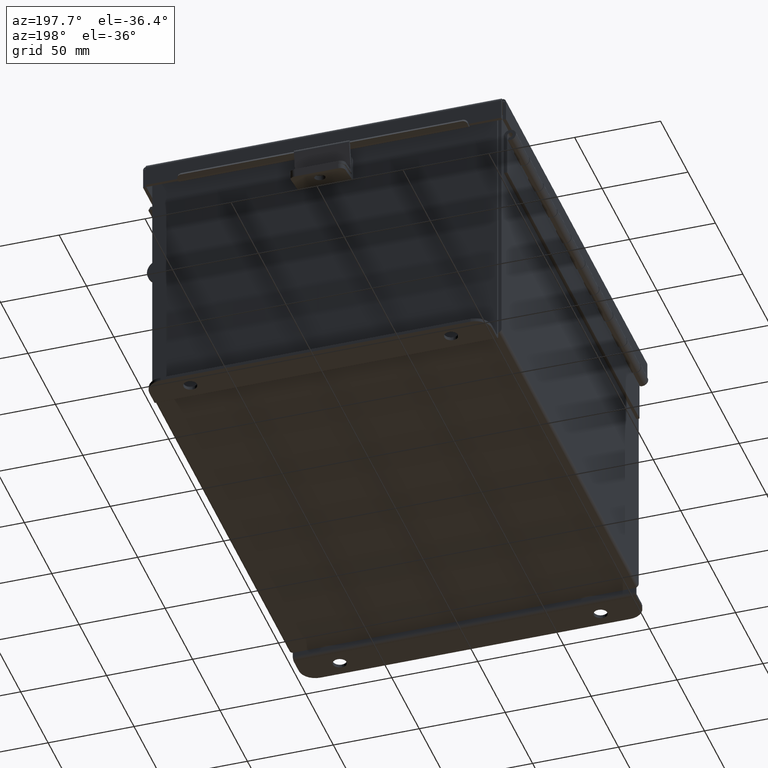
[diagram: clean part render]
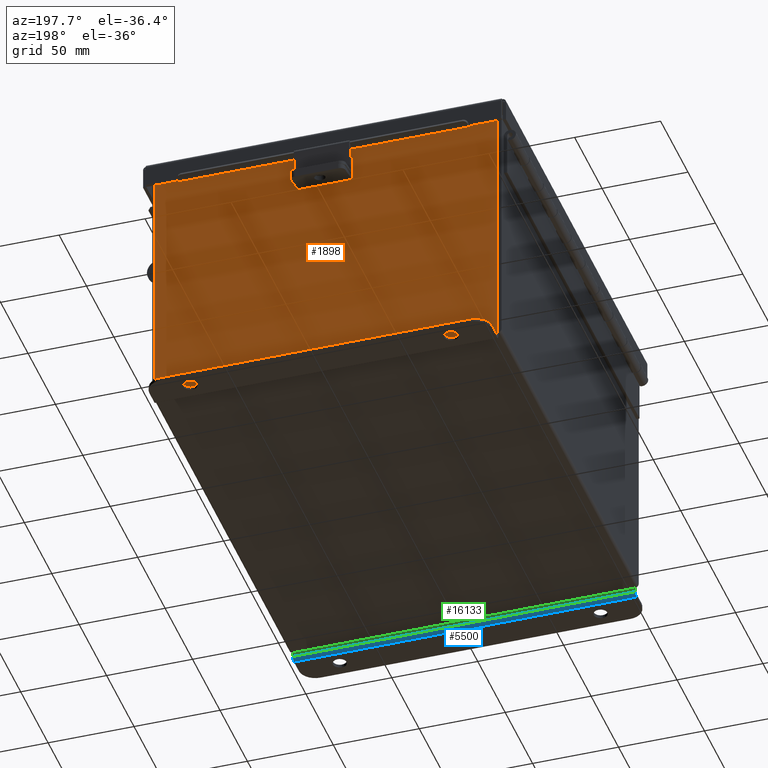
[diagram: same view with three faces highlighted in distinct colors, each labeled with its STEP entity id]
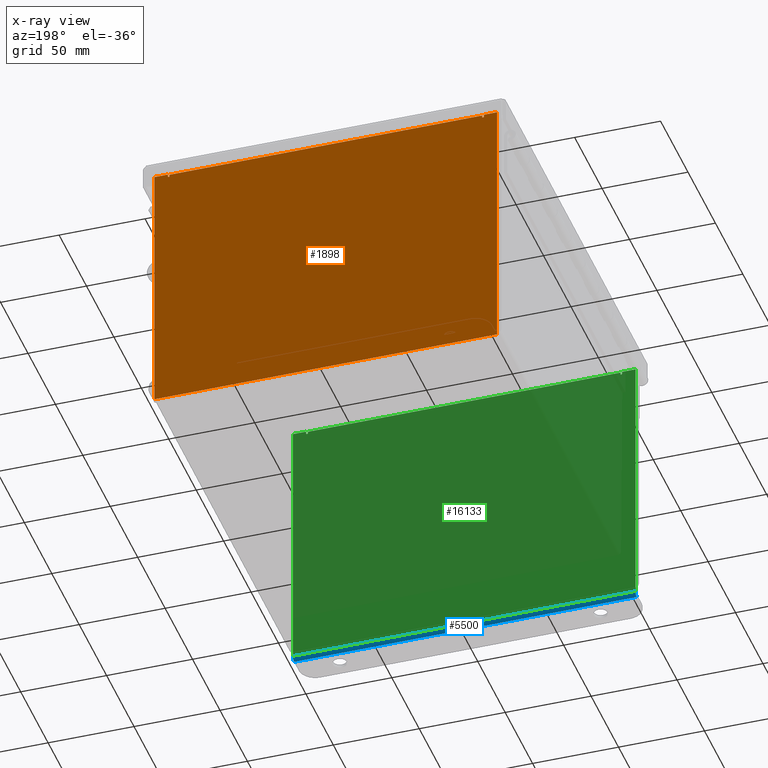
[diagram: x-ray of the same camera — body ghosted, the three highlighted faces saturated]
A machine part, auxiliary view with three faces highlighted in distinct colors.
The next image is the same camera in x-ray (body ghosted, the three faces saturated) — at least one of them is partly hidden behind the body in this view.
Their STEP definitions:

[orange] entity #1898 — the highlighted planar face has unit normal (0, -1, 0).
#67 = CARTESIAN_POINT ( 'NONE',  ( 3.925299999999999600, 0.0000000000000000000, 2.925299999999999600 ) ) ;
#261 = CARTESIAN_POINT ( 'NONE',  ( -3.925299999999999600, 0.0000000000000000000, 2.925299999999999600 ) ) ;
#300 = VERTEX_POINT ( 'NONE', #5429 ) ;
#304 = CARTESIAN_POINT ( 'NONE',  ( -3.619649999999999600, 0.0000000000000000000, 2.925299999999999600 ) ) ;
#619 = CARTESIAN_POINT ( 'NONE',  ( -3.582299999999999600, 0.0000000000000000000, 2.874949999999999200 ) ) ;
#674 = EDGE_CURVE ( 'NONE', #11678, #1456, #11774, .T. ) ;
#714 = VECTOR ( 'NONE', #12511, 39.37007874015748100 ) ;
#860 = CARTESIAN_POINT ( 'NONE',  ( 3.619649999999937400, 0.0000000000000000000, -7.867722221753078700E-014 ) ) ;
#991 = VECTOR ( 'NONE', #6445, 39.37007874015748100 ) ;
#1086 = VERTEX_POINT ( 'NONE', #14085 ) ;
#1111 = LINE ( 'NONE', #4866, #714 ) ;
#1204 = VERTEX_POINT ( 'NONE', #3157 ) ;
#1456 = VERTEX_POINT ( 'NONE', #619 ) ;
#1898 = ADVANCED_FACE ( 'NONE', ( #9356 ), #14934, .F. ) ;
#2104 = VECTOR ( 'NONE', #15505, 39.37007874015748100 ) ;
#2131 = VECTOR ( 'NONE', #8506, 39.37007874015748100 ) ;
#2575 = VERTEX_POINT ( 'NONE', #7294 ) ;
#2608 = CARTESIAN_POINT ( 'NONE',  ( 3.925299999999999600, 0.0000000000000000000, -3.099299999999999900 ) ) ;
#2727 = EDGE_LOOP ( 'NONE', ( #16073, #11976, #10118, #14120, #14423, #8174, #14835, #14193, #10639, #7487, #11870, #11010 ) ) ;
#2853 = LINE ( 'NONE', #13628, #5840 ) ;
#3157 = CARTESIAN_POINT ( 'NONE',  ( -3.925299999999999600, 0.0000000000000000000, 2.925299999999999600 ) ) ;
#3168 = DIRECTION ( 'NONE',  ( 0.0000000000000000000, 0.0000000000000000000, -1.000000000000000000 ) ) ;
#3243 = VECTOR ( 'NONE', #7227, 39.37007874015748100 ) ;
#3281 = VECTOR ( 'NONE', #9215, 39.37007874015748100 ) ;
#3341 = VECTOR ( 'NONE', #12239, 39.37007874015748100 ) ;
#3414 = VERTEX_POINT ( 'NONE', #304 ) ;
#3873 = CARTESIAN_POINT ( 'NONE',  ( 3.925299999999999600, 0.0000000000000000000, 2.925299999999999600 ) ) ;
#4077 = EDGE_CURVE ( 'NONE', #7641, #13609, #11169, .T. ) ;
#4212 = DIRECTION ( 'NONE',  ( -0.0000000000000000000, 1.000000000000000000, -0.0000000000000000000 ) ) ;
#4213 = CARTESIAN_POINT ( 'NONE',  ( 3.619649999999999600, 0.0000000000000000000, 2.874949999999999200 ) ) ;
#4723 = DIRECTION ( 'NONE',  ( 1.000000000000000000, 0.0000000000000000000, 0.0000000000000000000 ) ) ;
#4822 = CARTESIAN_POINT ( 'NONE',  ( -3.619649999999999600, 0.0000000000000000000, 2.874949999999999200 ) ) ;
#4866 = CARTESIAN_POINT ( 'NONE',  ( -3.925299999999999600, 0.0000000000000000000, 2.925299999999999600 ) ) ;
#5030 = CARTESIAN_POINT ( 'NONE',  ( 3.600974999999999600, 0.0000000000000000000, 2.874949999999999200 ) ) ;
#5162 = EDGE_CURVE ( 'NONE', #1204, #3414, #14134, .T. ) ;
#5429 = CARTESIAN_POINT ( 'NONE',  ( 3.582299999999999600, 0.0000000000000000000, 2.912299999999999200 ) ) ;
#5514 = LINE ( 'NONE', #11645, #2104 ) ;
#5539 = LINE ( 'NONE', #860, #2131 ) ;
#5795 = VECTOR ( 'NONE', #3168, 39.37007874015748100 ) ;
#5796 = CARTESIAN_POINT ( 'NONE',  ( 3.582299999999999600, 0.0000000000000000000, 2.874949999999999200 ) ) ;
#5840 = VECTOR ( 'NONE', #4723, 39.37007874015748100 ) ;
#5963 = CARTESIAN_POINT ( 'NONE',  ( -3.619649999999999600, 0.0000000000000000000, 0.0000000000000000000 ) ) ;
#6133 = AXIS2_PLACEMENT_3D ( 'NONE', #11823, #4212, #13126 ) ;
#6313 = DIRECTION ( 'NONE',  ( 0.0000000000000000000, 0.0000000000000000000, -1.000000000000000000 ) ) ;
#6445 = DIRECTION ( 'NONE',  ( 0.0000000000000000000, 0.0000000000000000000, -1.000000000000000000 ) ) ;
#6644 = AXIS2_PLACEMENT_3D ( 'NONE', #16205, #11079, #8584 ) ;
#6673 = LINE ( 'NONE', #7923, #3281 ) ;
#7227 = DIRECTION ( 'NONE',  ( 0.0000000000000000000, 0.0000000000000000000, 1.000000000000000000 ) ) ;
#7285 = VERTEX_POINT ( 'NONE', #5796 ) ;
#7294 = CARTESIAN_POINT ( 'NONE',  ( 3.619650000000000900, 0.0000000000000000000, 2.925299999999999600 ) ) ;
#7487 = ORIENTED_EDGE ( 'NONE', *, *, #10913, .F. ) ;
#7641 = VERTEX_POINT ( 'NONE', #67 ) ;
#7903 = EDGE_CURVE ( 'NONE', #7285, #300, #14317, .T. ) ;
#7923 = CARTESIAN_POINT ( 'NONE',  ( -3.925299999999999600, 0.0000000000000000000, 2.925299999999999600 ) ) ;
#7947 = DIRECTION ( 'NONE',  ( 1.000000000000000000, 0.0000000000000000000, 0.0000000000000000000 ) ) ;
#8003 = EDGE_CURVE ( 'NONE', #2575, #8421, #5539, .T. ) ;
#8174 = ORIENTED_EDGE ( 'NONE', *, *, #15820, .F. ) ;
#8421 = VERTEX_POINT ( 'NONE', #4213 ) ;
#8506 = DIRECTION ( 'NONE',  ( -2.170286390199978800E-014, 0.0000000000000000000, -1.000000000000000000 ) ) ;
#8514 = CIRCLE ( 'NONE', #6133, 0.01867500000000003900 ) ;
#8584 = DIRECTION ( 'NONE',  ( 0.0000000000000000000, -0.0000000000000000000, -1.000000000000000000 ) ) ;
#9215 = DIRECTION ( 'NONE',  ( 1.000000000000000000, 0.0000000000000000000, 0.0000000000000000000 ) ) ;
#9356 = FACE_OUTER_BOUND ( 'NONE', #2727, .T. ) ;
#10118 = ORIENTED_EDGE ( 'NONE', *, *, #674, .F. ) ;
#10210 = CARTESIAN_POINT ( 'NONE',  ( -3.582299999999999600, 1.092739197465705300E-015, 2.912299999999999200 ) ) ;
#10639 = ORIENTED_EDGE ( 'NONE', *, *, #4077, .T. ) ;
#10913 = EDGE_CURVE ( 'NONE', #1086, #13609, #5514, .T. ) ;
#10966 = CARTESIAN_POINT ( 'NONE',  ( 3.582299999999999600, 0.0000000000000000000, 0.0000000000000000000 ) ) ;
#11010 = ORIENTED_EDGE ( 'NONE', *, *, #5162, .T. ) ;
#11079 = DIRECTION ( 'NONE',  ( 0.0000000000000000000, -1.000000000000000000, 0.0000000000000000000 ) ) ;
#11169 = LINE ( 'NONE', #3873, #991 ) ;
#11475 = VERTEX_POINT ( 'NONE', #4822 ) ;
#11645 = CARTESIAN_POINT ( 'NONE',  ( -3.925299999999999600, 0.0000000000000000000, -3.099299999999999900 ) ) ;
#11678 = VERTEX_POINT ( 'NONE', #10210 ) ;
#11774 = LINE ( 'NONE', #12077, #5795 ) ;
#11823 = CARTESIAN_POINT ( 'NONE',  ( -3.600974999999999600, 0.0000000000000000000, 2.874949999999999200 ) ) ;
#11833 = EDGE_CURVE ( 'NONE', #2575, #7641, #6673, .T. ) ;
#11870 = ORIENTED_EDGE ( 'NONE', *, *, #15749, .T. ) ;
#11976 = ORIENTED_EDGE ( 'NONE', *, *, #15379, .F. ) ;
#12077 = CARTESIAN_POINT ( 'NONE',  ( -3.582299999999999600, 0.0000000000000000000, 0.0000000000000000000 ) ) ;
#12239 = DIRECTION ( 'NONE',  ( 0.0000000000000000000, 0.0000000000000000000, 1.000000000000000000 ) ) ;
#12511 = DIRECTION ( 'NONE',  ( -0.0000000000000000000, -0.0000000000000000000, 1.000000000000000000 ) ) ;
#12847 = EDGE_CURVE ( 'NONE', #11678, #300, #2853, .T. ) ;
#13126 = DIRECTION ( 'NONE',  ( 0.0000000000000000000, 0.0000000000000000000, -1.000000000000000000 ) ) ;
#13366 = EDGE_CURVE ( 'NONE', #11475, #3414, #16403, .T. ) ;
#13483 = CIRCLE ( 'NONE', #15214, 0.01867500000000003900 ) ;
#13609 = VERTEX_POINT ( 'NONE', #2608 ) ;
#13628 = CARTESIAN_POINT ( 'NONE',  ( -3.582299999999999600, 1.092739197465705300E-015, 2.912299999999999200 ) ) ;
#13952 = DIRECTION ( 'NONE',  ( -0.0000000000000000000, 1.000000000000000000, -0.0000000000000000000 ) ) ;
#14085 = CARTESIAN_POINT ( 'NONE',  ( -3.925299999999999600, 0.0000000000000000000, -3.099299999999999900 ) ) ;
#14120 = ORIENTED_EDGE ( 'NONE', *, *, #12847, .T. ) ;
#14134 = LINE ( 'NONE', #261, #14933 ) ;
#14193 = ORIENTED_EDGE ( 'NONE', *, *, #11833, .T. ) ;
#14317 = LINE ( 'NONE', #10966, #3341 ) ;
#14423 = ORIENTED_EDGE ( 'NONE', *, *, #7903, .F. ) ;
#14835 = ORIENTED_EDGE ( 'NONE', *, *, #8003, .F. ) ;
#14933 = VECTOR ( 'NONE', #7947, 39.37007874015748100 ) ;
#14934 = PLANE ( 'NONE',  #6644 ) ;
#15214 = AXIS2_PLACEMENT_3D ( 'NONE', #5030, #13952, #6313 ) ;
#15379 = EDGE_CURVE ( 'NONE', #1456, #11475, #8514, .T. ) ;
#15505 = DIRECTION ( 'NONE',  ( 1.000000000000000000, -0.0000000000000000000, -0.0000000000000000000 ) ) ;
#15749 = EDGE_CURVE ( 'NONE', #1086, #1204, #1111, .T. ) ;
#15820 = EDGE_CURVE ( 'NONE', #8421, #7285, #13483, .T. ) ;
#16073 = ORIENTED_EDGE ( 'NONE', *, *, #13366, .F. ) ;
#16205 = CARTESIAN_POINT ( 'NONE',  ( 0.0000000000000000000, 0.0000000000000000000, 0.0000000000000000000 ) ) ;
#16403 = LINE ( 'NONE', #5963, #3243 ) ;

[blue] entity #5500 — the highlighted cylindrical surface (edge-blend (fillet) strip) has radius 2.2276 mm, axis along (1, 0, -0).
#1153 = VERTEX_POINT ( 'NONE', #15753 ) ;
#1262 = CIRCLE ( 'NONE', #12197, 0.08770000000000026400 ) ;
#2014 = CARTESIAN_POINT ( 'NONE',  ( 3.925299999999998700, 0.01300000000000120000, -3.187000000000000300 ) ) ;
#2370 = CIRCLE ( 'NONE', #5417, 0.08770000000000026400 ) ;
#2553 = CYLINDRICAL_SURFACE ( 'NONE', #7334, 0.08770000000000026400 ) ;
#2852 = DIRECTION ( 'NONE',  ( 1.000000000000000000, 4.910036603141682400E-031, -0.0000000000000000000 ) ) ;
#3291 = ORIENTED_EDGE ( 'NONE', *, *, #10453, .F. ) ;
#3322 = CARTESIAN_POINT ( 'NONE',  ( -3.925300000000000900, 0.01300000000000010700, -3.187000000000000300 ) ) ;
#3618 = EDGE_CURVE ( 'NONE', #12779, #12087, #14181, .T. ) ;
#4823 = EDGE_CURVE ( 'NONE', #12108, #12087, #2370, .T. ) ;
#5075 = DIRECTION ( 'NONE',  ( 0.0000000000000000000, -3.699053013085864000E-015, -1.000000000000000000 ) ) ;
#5178 = DIRECTION ( 'NONE',  ( -1.000000000000000000, -4.910036603141682400E-031, 0.0000000000000000000 ) ) ;
#5417 = AXIS2_PLACEMENT_3D ( 'NONE', #10490, #2852, #11773 ) ;
#5500 = ADVANCED_FACE ( 'NONE', ( #9335 ), #2553, .T. ) ;
#5906 = CARTESIAN_POINT ( 'NONE',  ( 3.925299999999998700, -0.07470000000000015500, -3.099299999999999900 ) ) ;
#7334 = AXIS2_PLACEMENT_3D ( 'NONE', #12726, #11423, #5075 ) ;
#7807 = ORIENTED_EDGE ( 'NONE', *, *, #4823, .F. ) ;
#9068 = EDGE_LOOP ( 'NONE', ( #3291, #13545, #12168, #7807 ) ) ;
#9335 = FACE_OUTER_BOUND ( 'NONE', #9068, .T. ) ;
#9499 = CARTESIAN_POINT ( 'NONE',  ( -3.925300000000000900, -0.07470000000000015500, -3.099299999999999900 ) ) ;
#10159 = EDGE_CURVE ( 'NONE', #12779, #1153, #1262, .T. ) ;
#10453 = EDGE_CURVE ( 'NONE', #1153, #12108, #11236, .T. ) ;
#10490 = CARTESIAN_POINT ( 'NONE',  ( 3.925299999999998700, 0.01300000000000010700, -3.099299999999999900 ) ) ;
#10786 = DIRECTION ( 'NONE',  ( 1.000000000000000000, 4.910036603141682400E-031, -0.0000000000000000000 ) ) ;
#10949 = DIRECTION ( 'NONE',  ( 1.000000000000000000, 4.910036603141682400E-031, -0.0000000000000000000 ) ) ;
#11236 = LINE ( 'NONE', #9499, #13833 ) ;
#11423 = DIRECTION ( 'NONE',  ( -1.000000000000000000, -4.910036603141682400E-031, 0.0000000000000000000 ) ) ;
#11580 = VECTOR ( 'NONE', #10949, 39.37007874015748100 ) ;
#11773 = DIRECTION ( 'NONE',  ( 0.0000000000000000000, 0.0000000000000000000, 1.000000000000000000 ) ) ;
#12087 = VERTEX_POINT ( 'NONE', #14773 ) ;
#12108 = VERTEX_POINT ( 'NONE', #5906 ) ;
#12168 = ORIENTED_EDGE ( 'NONE', *, *, #3618, .T. ) ;
#12197 = AXIS2_PLACEMENT_3D ( 'NONE', #12813, #5178, #14081 ) ;
#12726 = CARTESIAN_POINT ( 'NONE',  ( -3.925300000000000900, 0.01299999999999901400, -3.099299999999999900 ) ) ;
#12779 = VERTEX_POINT ( 'NONE', #3322 ) ;
#12813 = CARTESIAN_POINT ( 'NONE',  ( -3.925300000000000900, 0.01299999999999901400, -3.099299999999999900 ) ) ;
#13545 = ORIENTED_EDGE ( 'NONE', *, *, #10159, .F. ) ;
#13833 = VECTOR ( 'NONE', #10786, 39.37007874015748100 ) ;
#14081 = DIRECTION ( 'NONE',  ( 0.0000000000000000000, 0.0000000000000000000, 1.000000000000000000 ) ) ;
#14181 = LINE ( 'NONE', #2014, #11580 ) ;
#14773 = CARTESIAN_POINT ( 'NONE',  ( 3.925299999999998700, 0.01300000000000010700, -3.187000000000000300 ) ) ;
#15753 = CARTESIAN_POINT ( 'NONE',  ( -3.925300000000000900, -0.07470000000000015500, -3.099299999999999900 ) ) ;

[green] entity #16133 — the highlighted planar face has unit normal (-0, 1, -0).
#124 = FACE_OUTER_BOUND ( 'NONE', #9107, .T. ) ;
#209 = LINE ( 'NONE', #4050, #16348 ) ;
#482 = CARTESIAN_POINT ( 'NONE',  ( 3.925299999999998700, -0.07469999999999142600, 2.925300000000001800 ) ) ;
#681 = ORIENTED_EDGE ( 'NONE', *, *, #16330, .F. ) ;
#720 = CARTESIAN_POINT ( 'NONE',  ( -3.619650000000000900, -0.07470000000000015500, 2.874949999999999200 ) ) ;
#1143 = CARTESIAN_POINT ( 'NONE',  ( 3.619649999999998700, -0.07469999999999033000, 2.874949999999999200 ) ) ;
#1153 = VERTEX_POINT ( 'NONE', #15753 ) ;
#1337 = CARTESIAN_POINT ( 'NONE',  ( 3.619649999999999600, -0.07469999999999142600, 2.925300000000000500 ) ) ;
#1922 = LINE ( 'NONE', #5864, #12528 ) ;
#2009 = DIRECTION ( 'NONE',  ( 1.000000000000000000, 4.910036603141682400E-031, -0.0000000000000000000 ) ) ;
#2176 = CARTESIAN_POINT ( 'NONE',  ( 3.582299999999998700, -0.07469999999999033000, 2.912299999999999200 ) ) ;
#2265 = AXIS2_PLACEMENT_3D ( 'NONE', #3628, #12558, #4907 ) ;
#2340 = CIRCLE ( 'NONE', #4460, 0.01867500000000003900 ) ;
#2470 = LINE ( 'NONE', #1143, #16034 ) ;
#2656 = EDGE_CURVE ( 'NONE', #15846, #2856, #5343, .T. ) ;
#2856 = VERTEX_POINT ( 'NONE', #9024 ) ;
#2868 = EDGE_CURVE ( 'NONE', #8132, #12085, #5931, .T. ) ;
#3299 = DIRECTION ( 'NONE',  ( -4.910036603141682400E-031, -1.000000000000000000, 0.0000000000000000000 ) ) ;
#3467 = CARTESIAN_POINT ( 'NONE',  ( -3.582300000000000900, -0.07470000000000015500, 2.874949999999999200 ) ) ;
#3492 = PLANE ( 'NONE',  #6027 ) ;
#3610 = LINE ( 'NONE', #8430, #9999 ) ;
#3628 = CARTESIAN_POINT ( 'NONE',  ( 3.600974999999998700, -0.07469999999999033000, 2.874949999999999200 ) ) ;
#3661 = EDGE_CURVE ( 'NONE', #8660, #12172, #3610, .T. ) ;
#4050 = CARTESIAN_POINT ( 'NONE',  ( -3.925300000000000900, -0.07470000000000015500, 2.925299999999999600 ) ) ;
#4116 = ORIENTED_EDGE ( 'NONE', *, *, #5828, .F. ) ;
#4192 = EDGE_CURVE ( 'NONE', #12170, #8132, #209, .T. ) ;
#4460 = AXIS2_PLACEMENT_3D ( 'NONE', #10946, #3299, #12222 ) ;
#4750 = CARTESIAN_POINT ( 'NONE',  ( -3.582300000000000900, -0.07470000000000015500, 2.912299999999998300 ) ) ;
#4786 = DIRECTION ( 'NONE',  ( 0.0000000000000000000, 0.0000000000000000000, -1.000000000000000000 ) ) ;
#4907 = DIRECTION ( 'NONE',  ( 0.0000000000000000000, 0.0000000000000000000, -1.000000000000000000 ) ) ;
#5104 = DIRECTION ( 'NONE',  ( 1.000000000000000000, 4.910036603141682400E-031, 0.0000000000000000000 ) ) ;
#5332 = VECTOR ( 'NONE', #15412, 39.37007874015748100 ) ;
#5343 = CIRCLE ( 'NONE', #2265, 0.01867500000000003900 ) ;
#5569 = VERTEX_POINT ( 'NONE', #1337 ) ;
#5723 = LINE ( 'NONE', #14136, #5332 ) ;
#5809 = EDGE_CURVE ( 'NONE', #12085, #8660, #2340, .T. ) ;
#5828 = EDGE_CURVE ( 'NONE', #12172, #15155, #1922, .T. ) ;
#5864 = CARTESIAN_POINT ( 'NONE',  ( -3.582300000000000900, -0.07469999999999907300, 2.912299999999998300 ) ) ;
#5906 = CARTESIAN_POINT ( 'NONE',  ( 3.925299999999998700, -0.07470000000000015500, -3.099299999999999900 ) ) ;
#5931 = LINE ( 'NONE', #14663, #9718 ) ;
#6027 = AXIS2_PLACEMENT_3D ( 'NONE', #11135, #12423, #4786 ) ;
#6752 = LINE ( 'NONE', #14822, #11071 ) ;
#6974 = VERTEX_POINT ( 'NONE', #482 ) ;
#7301 = VECTOR ( 'NONE', #11114, 39.37007874015748100 ) ;
#7370 = EDGE_CURVE ( 'NONE', #6974, #12108, #6752, .T. ) ;
#7583 = ORIENTED_EDGE ( 'NONE', *, *, #2868, .F. ) ;
#8132 = VERTEX_POINT ( 'NONE', #8790 ) ;
#8244 = EDGE_CURVE ( 'NONE', #1153, #12170, #5723, .T. ) ;
#8319 = DIRECTION ( 'NONE',  ( 0.0000000000000000000, 1.186875369640613200E-014, -1.000000000000000000 ) ) ;
#8430 = CARTESIAN_POINT ( 'NONE',  ( -3.582300000000000900, -0.07469999999999907300, 2.874949999999999200 ) ) ;
#8652 = EDGE_CURVE ( 'NONE', #15155, #15846, #14092, .T. ) ;
#8660 = VERTEX_POINT ( 'NONE', #3467 ) ;
#8790 = CARTESIAN_POINT ( 'NONE',  ( -3.619650000000000900, -0.07470000000000015500, 2.925299999999998200 ) ) ;
#9024 = CARTESIAN_POINT ( 'NONE',  ( 3.619649999999998700, -0.07469999999999142600, 2.874949999999999200 ) ) ;
#9107 = EDGE_LOOP ( 'NONE', ( #15097, #7583, #12529, #13123, #13211, #10574, #681, #11922, #9655, #16278, #4116, #10649 ) ) ;
#9499 = CARTESIAN_POINT ( 'NONE',  ( -3.925300000000000900, -0.07470000000000015500, -3.099299999999999900 ) ) ;
#9655 = ORIENTED_EDGE ( 'NONE', *, *, #2656, .F. ) ;
#9718 = VECTOR ( 'NONE', #8319, 39.37007874015748100 ) ;
#9999 = VECTOR ( 'NONE', #11006, 39.37007874015748100 ) ;
#10054 = EDGE_CURVE ( 'NONE', #2856, #5569, #2470, .T. ) ;
#10070 = DIRECTION ( 'NONE',  ( 2.170286390199978800E-014, -1.186875369640613200E-014, 1.000000000000000000 ) ) ;
#10453 = EDGE_CURVE ( 'NONE', #1153, #12108, #11236, .T. ) ;
#10475 = VECTOR ( 'NONE', #5104, 39.37007874015748100 ) ;
#10574 = ORIENTED_EDGE ( 'NONE', *, *, #7370, .F. ) ;
#10649 = ORIENTED_EDGE ( 'NONE', *, *, #3661, .F. ) ;
#10786 = DIRECTION ( 'NONE',  ( 1.000000000000000000, 4.910036603141682400E-031, -0.0000000000000000000 ) ) ;
#10946 = CARTESIAN_POINT ( 'NONE',  ( -3.600975000000000900, -0.07469999999999907300, 2.874949999999999200 ) ) ;
#11006 = DIRECTION ( 'NONE',  ( 0.0000000000000000000, 0.0000000000000000000, 1.000000000000000000 ) ) ;
#11071 = VECTOR ( 'NONE', #14882, 39.37007874015748100 ) ;
#11091 = CARTESIAN_POINT ( 'NONE',  ( -3.925300000000000900, -0.07470000000000015500, 2.925299999999999600 ) ) ;
#11114 = DIRECTION ( 'NONE',  ( 0.0000000000000000000, 0.0000000000000000000, -1.000000000000000000 ) ) ;
#11135 = CARTESIAN_POINT ( 'NONE',  ( 0.0000000000000000000, -0.07470000000000015500, 0.0000000000000000000 ) ) ;
#11236 = LINE ( 'NONE', #9499, #13833 ) ;
#11669 = DIRECTION ( 'NONE',  ( 1.000000000000000000, 4.910036603141682400E-031, 0.0000000000000000000 ) ) ;
#11922 = ORIENTED_EDGE ( 'NONE', *, *, #10054, .F. ) ;
#12085 = VERTEX_POINT ( 'NONE', #720 ) ;
#12108 = VERTEX_POINT ( 'NONE', #5906 ) ;
#12170 = VERTEX_POINT ( 'NONE', #11091 ) ;
#12172 = VERTEX_POINT ( 'NONE', #4750 ) ;
#12222 = DIRECTION ( 'NONE',  ( 0.0000000000000000000, 0.0000000000000000000, -1.000000000000000000 ) ) ;
#12423 = DIRECTION ( 'NONE',  ( -4.910036603141682400E-031, -1.000000000000000000, -0.0000000000000000000 ) ) ;
#12528 = VECTOR ( 'NONE', #2009, 39.37007874015748100 ) ;
#12529 = ORIENTED_EDGE ( 'NONE', *, *, #4192, .F. ) ;
#12558 = DIRECTION ( 'NONE',  ( -4.910036603141682400E-031, -1.000000000000000000, 0.0000000000000000000 ) ) ;
#13123 = ORIENTED_EDGE ( 'NONE', *, *, #8244, .F. ) ;
#13211 = ORIENTED_EDGE ( 'NONE', *, *, #10453, .T. ) ;
#13833 = VECTOR ( 'NONE', #10786, 39.37007874015748100 ) ;
#14024 = CARTESIAN_POINT ( 'NONE',  ( -3.925300000000000900, -0.07470000000000015500, 2.925299999999999600 ) ) ;
#14092 = LINE ( 'NONE', #2176, #7301 ) ;
#14136 = CARTESIAN_POINT ( 'NONE',  ( -3.925300000000000900, -0.07470000000000015500, 2.925299999999999600 ) ) ;
#14663 = CARTESIAN_POINT ( 'NONE',  ( -3.619650000000000900, -0.07469999999999907300, 2.925299999999998200 ) ) ;
#14822 = CARTESIAN_POINT ( 'NONE',  ( 3.925299999999998700, -0.07469999999999142600, 2.925300000000001800 ) ) ;
#14882 = DIRECTION ( 'NONE',  ( 0.0000000000000000000, 0.0000000000000000000, -1.000000000000000000 ) ) ;
#15075 = LINE ( 'NONE', #14024, #10475 ) ;
#15097 = ORIENTED_EDGE ( 'NONE', *, *, #5809, .F. ) ;
#15145 = CARTESIAN_POINT ( 'NONE',  ( 3.582299999999998700, -0.07469999999999142600, 2.912299999999999200 ) ) ;
#15155 = VERTEX_POINT ( 'NONE', #15145 ) ;
#15229 = CARTESIAN_POINT ( 'NONE',  ( 3.582299999999998700, -0.07469999999999142600, 2.874949999999999200 ) ) ;
#15412 = DIRECTION ( 'NONE',  ( 0.0000000000000000000, 0.0000000000000000000, 1.000000000000000000 ) ) ;
#15753 = CARTESIAN_POINT ( 'NONE',  ( -3.925300000000000900, -0.07470000000000015500, -3.099299999999999900 ) ) ;
#15846 = VERTEX_POINT ( 'NONE', #15229 ) ;
#16034 = VECTOR ( 'NONE', #10070, 39.37007874015748100 ) ;
#16133 = ADVANCED_FACE ( 'NONE', ( #124 ), #3492, .T. ) ;
#16278 = ORIENTED_EDGE ( 'NONE', *, *, #8652, .F. ) ;
#16330 = EDGE_CURVE ( 'NONE', #5569, #6974, #15075, .T. ) ;
#16348 = VECTOR ( 'NONE', #11669, 39.37007874015748100 ) ;